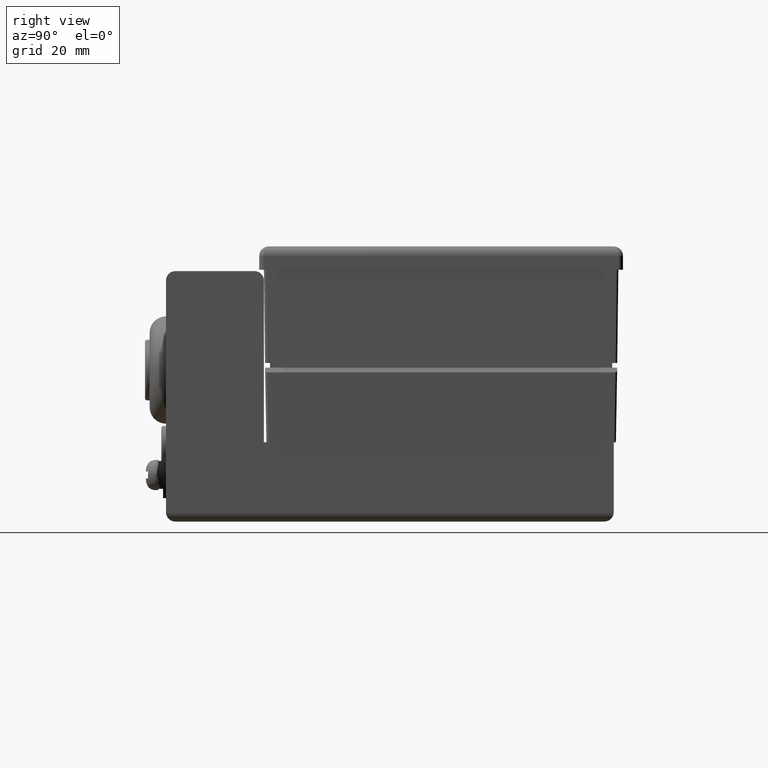
[diagram: clean part render]
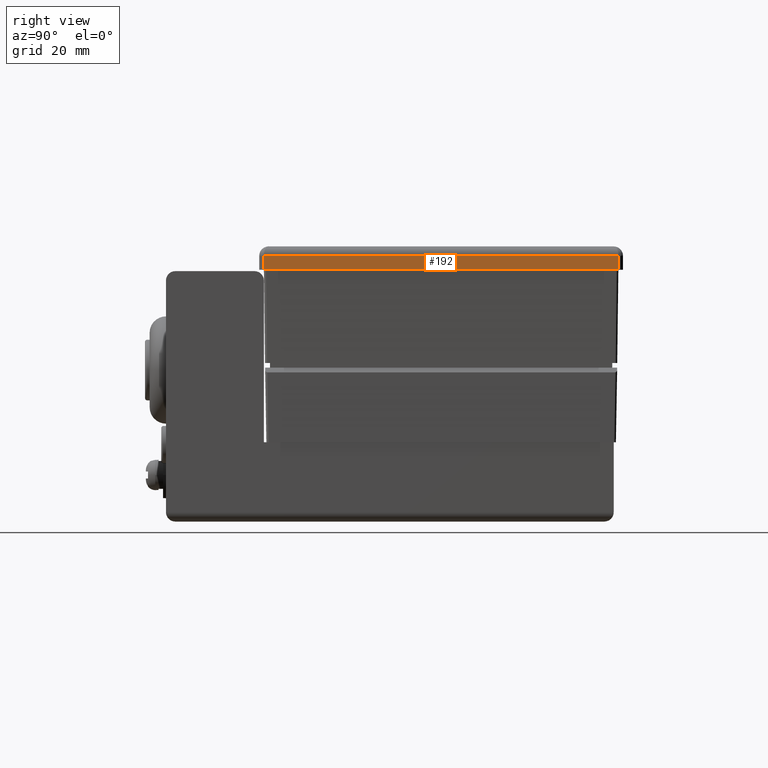
[diagram: same view with one face highlighted and labeled with its STEP entity id]
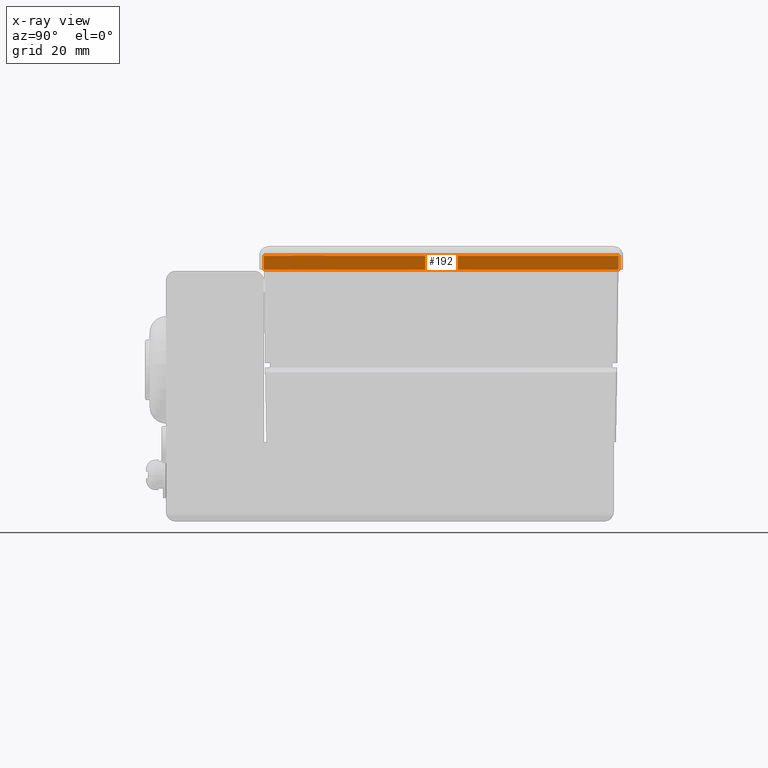
[diagram: x-ray of the same camera — body ghosted, the highlighted face saturated]
A machine part, right view. The second image highlights one B-rep face of the part: STEP entity #192.
The next image is the same camera in x-ray: the body ghosted, the highlighted face saturated — about 0% of this face is hidden behind the body in this view.
In plain terms, the highlighted planar face has unit normal (-1, 0, 0).
Its self-contained STEP definition (entity closure, byte-faithful):
#192 = ADVANCED_FACE( '', ( #524 ), #525, .F. );
#524 = FACE_OUTER_BOUND( '', #1054, .T. );
#525 = PLANE( '', #1055 );
#1054 = EDGE_LOOP( '', ( #2168, #2169, #2170, #2171 ) );
#1055 = AXIS2_PLACEMENT_3D( '', #2172, #2173, #2174 );
#2168 = ORIENTED_EDGE( '', *, *, #3317, .T. );
#2169 = ORIENTED_EDGE( '', *, *, #3318, .T. );
#2170 = ORIENTED_EDGE( '', *, *, #3319, .F. );
#2171 = ORIENTED_EDGE( '', *, *, #3320, .F. );
#2172 = CARTESIAN_POINT( '', ( 51.5000000000000, 38.0000000000000, -5.00000000000000 ) );
#2173 = DIRECTION( '', ( -1.00000000000000, 0.000000000000000, 0.000000000000000 ) );
#2174 = DIRECTION( '', ( 0.000000000000000, 1.00000000000000, 0.000000000000000 ) );
#3317 = EDGE_CURVE( '', #3782, #3783, #3784, .T. );
#3318 = EDGE_CURVE( '', #3783, #3785, #3786, .T. );
#3319 = EDGE_CURVE( '', #3787, #3785, #3788, .T. );
#3320 = EDGE_CURVE( '', #3782, #3787, #3789, .T. );
#3782 = VERTEX_POINT( '', #4441 );
#3783 = VERTEX_POINT( '', #4442 );
#3784 = LINE( '', #4443, #4444 );
#3785 = VERTEX_POINT( '', #4445 );
#3786 = LINE( '', #4446, #4447 );
#3787 = VERTEX_POINT( '', #4448 );
#3788 = LINE( '', #4449, #4450 );
#3789 = LINE( '', #4451, #4452 );
#4441 = CARTESIAN_POINT( '', ( 51.5000000000000, 38.0000000000000, -5.00000000000000 ) );
#4442 = CARTESIAN_POINT( '', ( 51.5000000000000, 38.0000000000000, -2.00000000000000 ) );
#4443 = CARTESIAN_POINT( '', ( 51.5000000000000, 38.0000000000000, -5.00000000000000 ) );
#4444 = VECTOR( '', #5307, 1000.00000000000 );
#4445 = CARTESIAN_POINT( '', ( 51.5000000000000, -38.0000000000000, -2.00000000000000 ) );
#4446 = CARTESIAN_POINT( '', ( 51.5000000000000, 38.0000000000000, -2.00000000000000 ) );
#4447 = VECTOR( '', #5308, 1000.00000000000 );
#4448 = CARTESIAN_POINT( '', ( 51.5000000000000, -38.0000000000000, -5.00000000000000 ) );
#4449 = CARTESIAN_POINT( '', ( 51.5000000000000, -38.0000000000000, -5.00000000000000 ) );
#4450 = VECTOR( '', #5309, 1000.00000000000 );
#4451 = CARTESIAN_POINT( '', ( 51.5000000000000, 38.0000000000000, -5.00000000000000 ) );
#4452 = VECTOR( '', #5310, 1000.00000000000 );
#5307 = DIRECTION( '', ( -0.000000000000000, -0.000000000000000, 1.00000000000000 ) );
#5308 = DIRECTION( '', ( 0.000000000000000, -1.00000000000000, 0.000000000000000 ) );
#5309 = DIRECTION( '', ( -0.000000000000000, -0.000000000000000, 1.00000000000000 ) );
#5310 = DIRECTION( '', ( 0.000000000000000, -1.00000000000000, -0.000000000000000 ) );